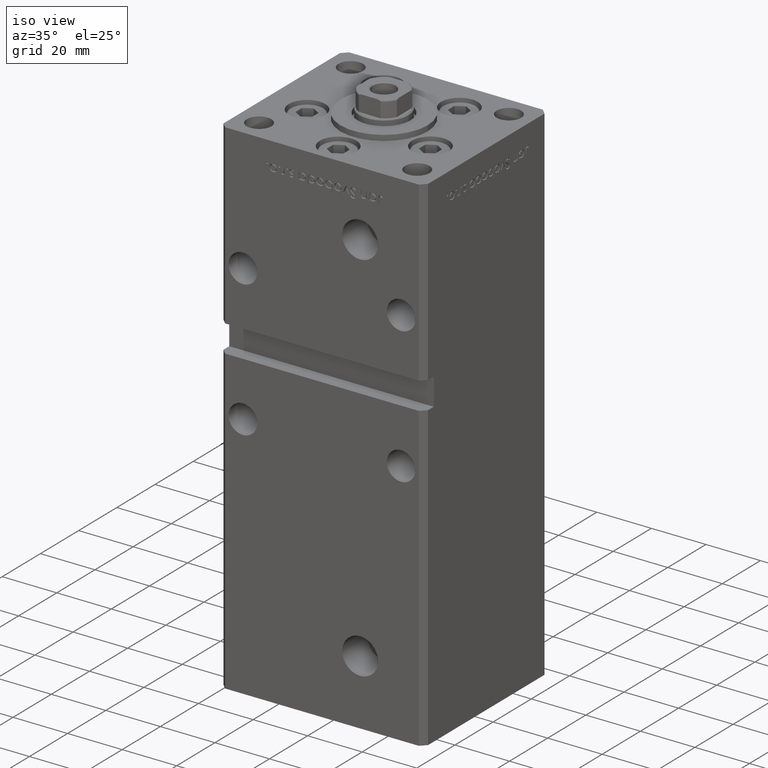
[diagram: clean part render]
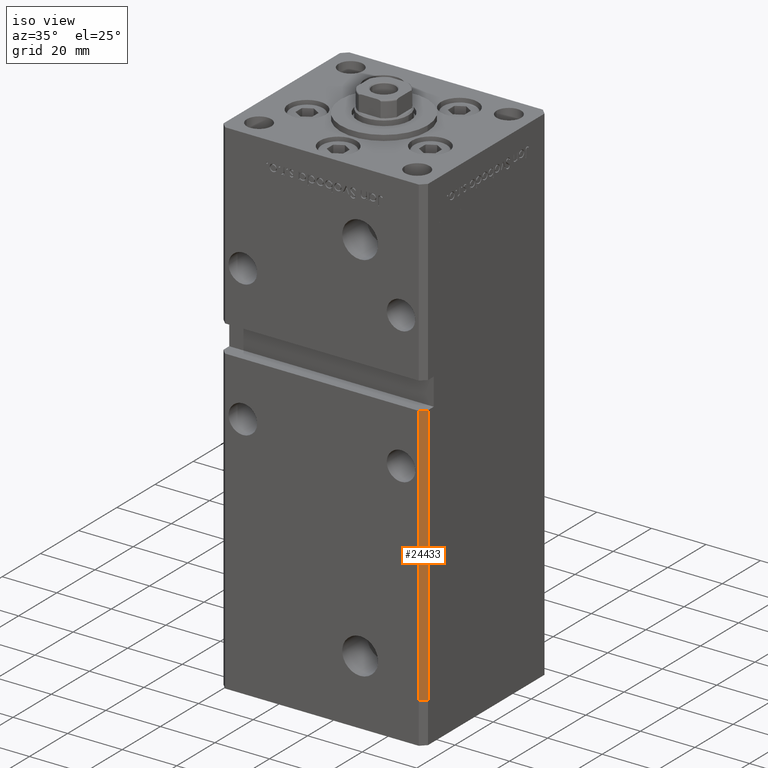
[diagram: same view with one face highlighted and labeled with its STEP entity id]
A machine part, iso view. The second image highlights one B-rep face of the part: STEP entity #24433.
In plain terms, the highlighted planar face has unit normal (0.7071, -0.7071, 0).
Its self-contained STEP definition (entity closure, byte-faithful):
#2577 = VECTOR ( 'NONE', #29175, 1000.000000000000000 ) ;
#2899 = ORIENTED_EDGE ( 'NONE', *, *, #27071, .F. ) ;
#5217 = EDGE_CURVE ( 'NONE', #38303, #23893, #32120, .T. ) ;
#7289 = LINE ( 'NONE', #23707, #22031 ) ;
#7829 = DIRECTION ( 'NONE',  ( 0.7071067811865475727, -0.7071067811865475727, 0.000000000000000000 ) ) ;
#7938 = VERTEX_POINT ( 'NONE', #27267 ) ;
#8190 = AXIS2_PLACEMENT_3D ( 'NONE', #28281, #7829, #28542 ) ;
#9700 = EDGE_CURVE ( 'NONE', #38303, #42358, #49233, .T. ) ;
#11591 = DIRECTION ( 'NONE',  ( -0.7071067811865474617, -0.7071067811865474617, 0.000000000000000000 ) ) ;
#12000 = ORIENTED_EDGE ( 'NONE', *, *, #9700, .F. ) ;
#12375 = DIRECTION ( 'NONE',  ( 0.7071067811865474617, 0.7071067811865474617, 0.000000000000000000 ) ) ;
#13664 = EDGE_CURVE ( 'NONE', #42358, #7938, #46171, .T. ) ;
#14139 = CARTESIAN_POINT ( 'NONE',  ( 37.49999999999999289, -30.50000000000000000, 156.0000000000000000 ) ) ;
#15377 = PLANE ( 'NONE',  #8190 ) ;
#17399 = CARTESIAN_POINT ( 'NONE',  ( 37.49999999999999289, -30.50000000000000355, 96.00000000000000000 ) ) ;
#22031 = VECTOR ( 'NONE', #11591, 1000.000000000000114 ) ;
#23707 = CARTESIAN_POINT ( 'NONE',  ( 37.49999999999999289, -30.50000000000000000, 0.000000000000000000 ) ) ;
#23893 = VERTEX_POINT ( 'NONE', #31429 ) ;
#24433 = ADVANCED_FACE ( 'NONE', ( #40891 ), #15377, .T. ) ;
#24888 = CARTESIAN_POINT ( 'NONE',  ( 35.49999999999999289, -32.50000000000000000, 156.0000000000000000 ) ) ;
#27071 = EDGE_CURVE ( 'NONE', #7938, #23893, #7289, .T. ) ;
#27267 = CARTESIAN_POINT ( 'NONE',  ( 37.49999999999999289, -30.50000000000000000, 0.000000000000000000 ) ) ;
#28281 = CARTESIAN_POINT ( 'NONE',  ( 37.49999999999999289, -30.50000000000000000, 156.0000000000000000 ) ) ;
#28542 = DIRECTION ( 'NONE',  ( 0.7071067811865474617, 0.7071067811865474617, 0.000000000000000000 ) ) ;
#29175 = DIRECTION ( 'NONE',  ( -0.000000000000000000, -0.000000000000000000, -1.000000000000000000 ) ) ;
#30847 = ORIENTED_EDGE ( 'NONE', *, *, #13664, .F. ) ;
#31429 = CARTESIAN_POINT ( 'NONE',  ( 35.49999999999999289, -32.50000000000000000, 0.000000000000000000 ) ) ;
#32120 = LINE ( 'NONE', #24888, #2577 ) ;
#36053 = ORIENTED_EDGE ( 'NONE', *, *, #5217, .T. ) ;
#37021 = VECTOR ( 'NONE', #12375, 1000.000000000000114 ) ;
#38303 = VERTEX_POINT ( 'NONE', #52005 ) ;
#38338 = DIRECTION ( 'NONE',  ( -0.000000000000000000, -0.000000000000000000, -1.000000000000000000 ) ) ;
#40891 = FACE_OUTER_BOUND ( 'NONE', #45822, .T. ) ;
#42358 = VERTEX_POINT ( 'NONE', #17399 ) ;
#44397 = CARTESIAN_POINT ( 'NONE',  ( 37.49999999999999289, -30.50000000000000000, 96.00000000000000000 ) ) ;
#45822 = EDGE_LOOP ( 'NONE', ( #12000, #36053, #2899, #30847 ) ) ;
#46171 = LINE ( 'NONE', #14139, #51774 ) ;
#49233 = LINE ( 'NONE', #44397, #37021 ) ;
#51774 = VECTOR ( 'NONE', #38338, 1000.000000000000000 ) ;
#52005 = CARTESIAN_POINT ( 'NONE',  ( 35.49999999999999289, -32.50000000000000000, 96.00000000000000000 ) ) ;